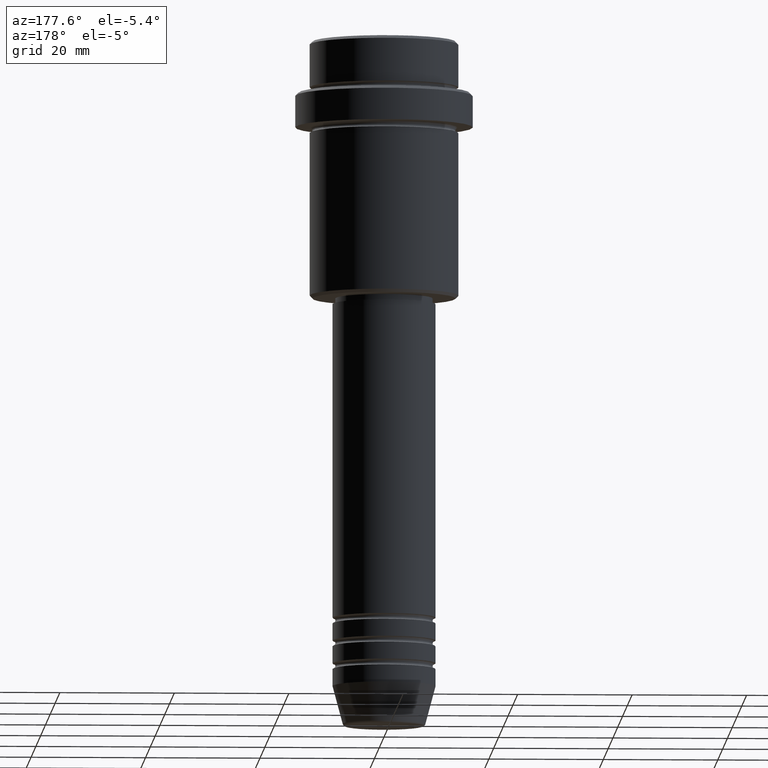
[diagram: clean part render]
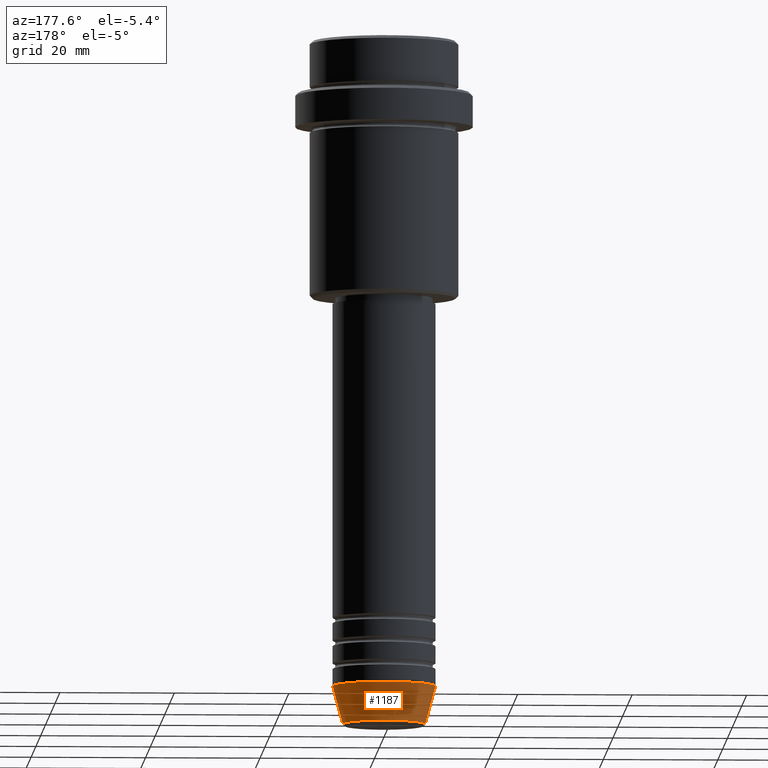
[diagram: same view with one face highlighted and labeled with its STEP entity id]
A machine part, auxiliary view. The second image highlights one B-rep face of the part: STEP entity #1187.
In plain terms, the highlighted conical surface has half-angle 15 deg.
Its self-contained STEP definition (entity closure, byte-faithful):
#4 = CARTESIAN_POINT ( 'NONE',  ( 0.000000000000000000, 0.000000000000000000, -112.9999999999999858 ) ) ;
#10 = EDGE_LOOP ( 'NONE', ( #800, #122, #548, #1273 ) ) ;
#11 = CARTESIAN_POINT ( 'NONE',  ( 7.223655072137188604, 0.000000000000000000, -119.6294095225512564 ) ) ;
#35 = LINE ( 'NONE', #486, #1347 ) ;
#112 = CIRCLE ( 'NONE', #1162, 9.000000000000000000 ) ;
#122 = ORIENTED_EDGE ( 'NONE', *, *, #1264, .T. ) ;
#180 = CARTESIAN_POINT ( 'NONE',  ( -9.000000000000000000, 1.102182119232617714E-15, -112.9999999999999858 ) ) ;
#192 = CARTESIAN_POINT ( 'NONE',  ( 0.000000000000000000, 0.000000000000000000, -112.9999999999999858 ) ) ;
#238 = EDGE_CURVE ( 'NONE', #1142, #491, #112, .T. ) ;
#262 = DIRECTION ( 'NONE',  ( -0.000000000000000000, -0.000000000000000000, 1.000000000000000000 ) ) ;
#268 = FACE_OUTER_BOUND ( 'NONE', #10, .T. ) ;
#283 = DIRECTION ( 'NONE',  ( -0.000000000000000000, -0.000000000000000000, 1.000000000000000000 ) ) ;
#342 = EDGE_CURVE ( 'NONE', #1135, #966, #469, .T. ) ;
#465 = DIRECTION ( 'NONE',  ( -0.000000000000000000, -0.000000000000000000, 1.000000000000000000 ) ) ;
#469 = CIRCLE ( 'NONE', #514, 7.223655072137188604 ) ;
#486 = CARTESIAN_POINT ( 'NONE',  ( 9.000000000000000000, 0.000000000000000000, -112.9999999999999858 ) ) ;
#491 = VERTEX_POINT ( 'NONE', #180 ) ;
#505 = CARTESIAN_POINT ( 'NONE',  ( -9.000000000000000000, 1.102182119232617714E-15, -112.9999999999999858 ) ) ;
#514 = AXIS2_PLACEMENT_3D ( 'NONE', #1132, #262, #583 ) ;
#548 = ORIENTED_EDGE ( 'NONE', *, *, #238, .F. ) ;
#583 = DIRECTION ( 'NONE',  ( 1.000000000000000000, 0.000000000000000000, 0.000000000000000000 ) ) ;
#655 = CARTESIAN_POINT ( 'NONE',  ( 9.000000000000000000, 0.000000000000000000, -112.9999999999999858 ) ) ;
#665 = AXIS2_PLACEMENT_3D ( 'NONE', #192, #283, #1226 ) ;
#708 = CONICAL_SURFACE ( 'NONE', #665, 9.000000000000000000, 0.2617993877991500740 ) ;
#709 = DIRECTION ( 'NONE',  ( 0.2588190451025213501, 0.000000000000000000, 0.9659258262890680902 ) ) ;
#738 = EDGE_CURVE ( 'NONE', #1135, #1142, #35, .T. ) ;
#800 = ORIENTED_EDGE ( 'NONE', *, *, #342, .T. ) ;
#928 = LINE ( 'NONE', #505, #1191 ) ;
#944 = DIRECTION ( 'NONE',  ( -0.2588190451025213501, 3.169619151431772337E-17, 0.9659258262890680902 ) ) ;
#966 = VERTEX_POINT ( 'NONE', #1072 ) ;
#1072 = CARTESIAN_POINT ( 'NONE',  ( -7.223655072137189492, 9.934123627281765110E-16, -119.6294095225512564 ) ) ;
#1121 = DIRECTION ( 'NONE',  ( 1.000000000000000000, 0.000000000000000000, 0.000000000000000000 ) ) ;
#1132 = CARTESIAN_POINT ( 'NONE',  ( 0.000000000000000000, 0.000000000000000000, -119.6294095225512564 ) ) ;
#1135 = VERTEX_POINT ( 'NONE', #11 ) ;
#1142 = VERTEX_POINT ( 'NONE', #655 ) ;
#1162 = AXIS2_PLACEMENT_3D ( 'NONE', #4, #465, #1121 ) ;
#1187 = ADVANCED_FACE ( 'NONE', ( #268 ), #708, .T. ) ;
#1191 = VECTOR ( 'NONE', #944, 1000.000000000000000 ) ;
#1226 = DIRECTION ( 'NONE',  ( 1.000000000000000000, 0.000000000000000000, 0.000000000000000000 ) ) ;
#1264 = EDGE_CURVE ( 'NONE', #966, #491, #928, .T. ) ;
#1273 = ORIENTED_EDGE ( 'NONE', *, *, #738, .F. ) ;
#1347 = VECTOR ( 'NONE', #709, 1000.000000000000000 ) ;